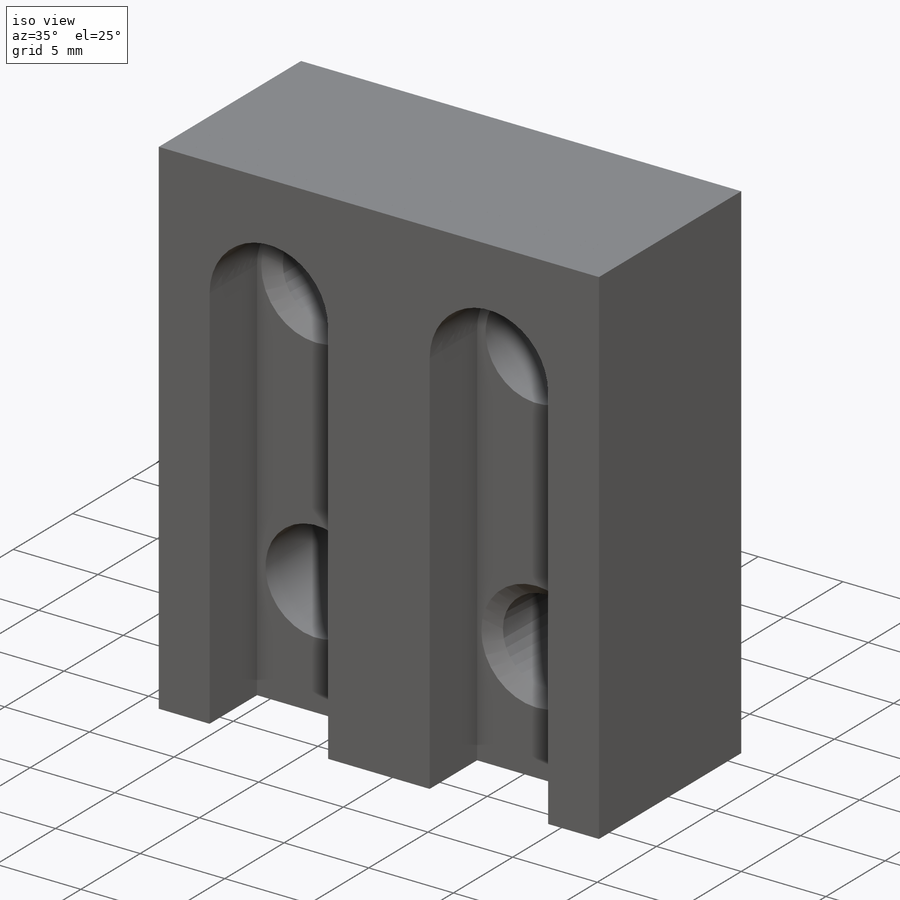
[diagram: iso view]
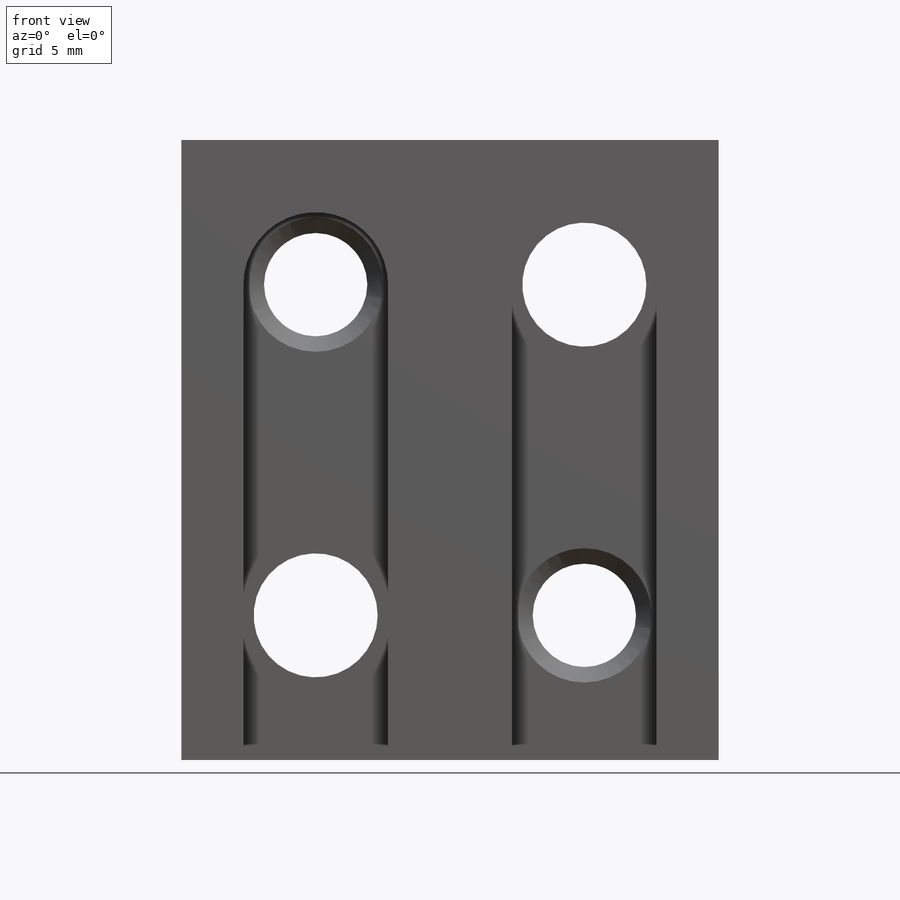
[diagram: front view]
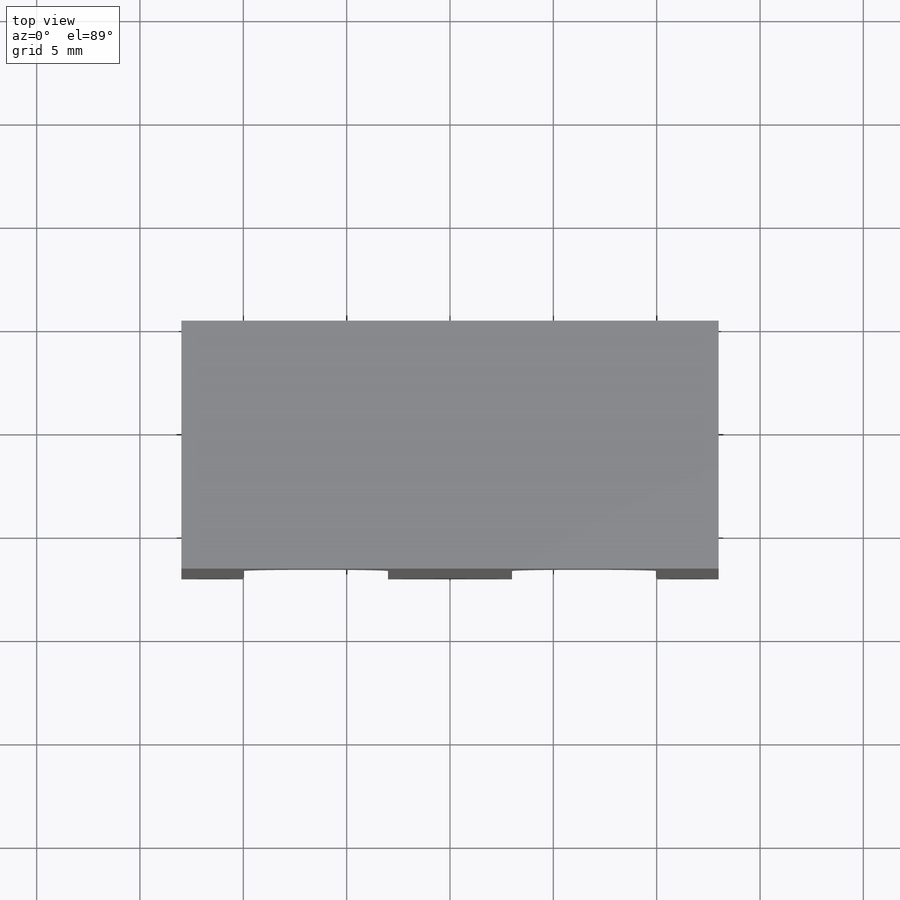
[diagram: top view]
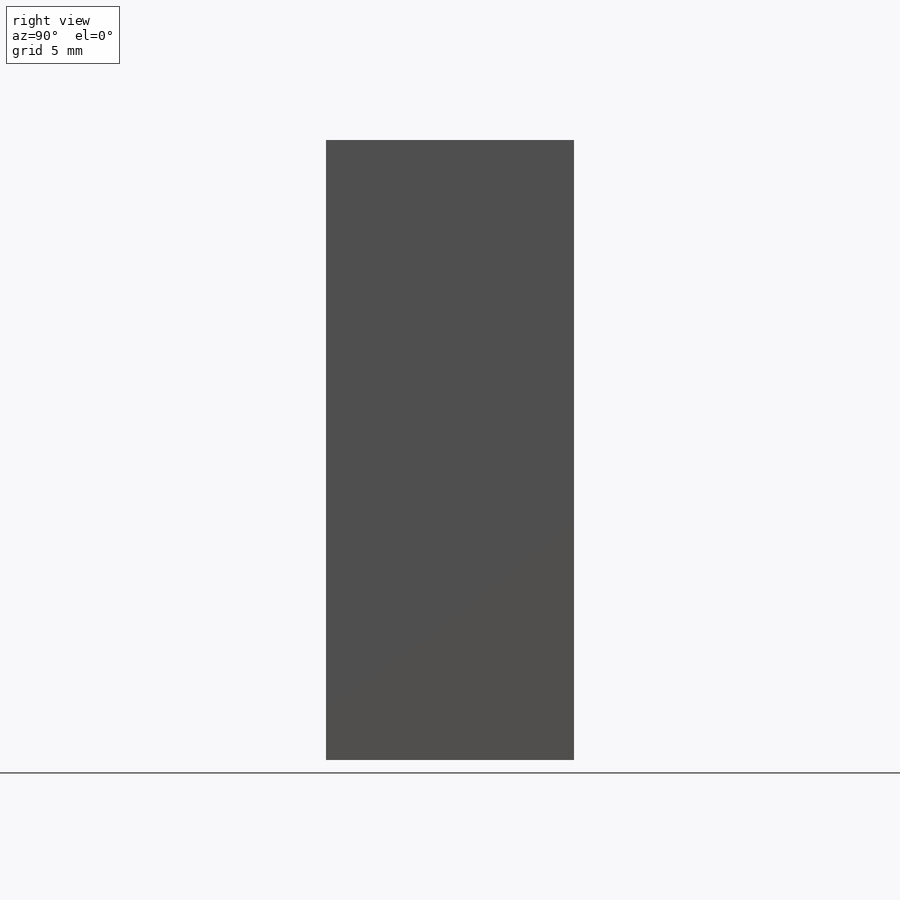
[diagram: right view]
SOLIDWORKS PART (.sldprt)
format: sldprt  version: not decoded by parser v0  size: 292,864 bytes
history: native  units: mm
features: sketch x7, hole x7, plane x3, thread x2, material x1, extrude x1, cut_extrude x1 + 4 further entries (+8 scaffold rows collapsed)
feature tree (34):
  scaffold x8  (default folders/planes/origin — collapsed)
  material  "Ст 3 ГОСТ 380-2005"
  plane  "Спереди"
  plane  "Сверху"
  plane  "Слева"
  "Начало координат"
  "PTricksFreeParameters"
  "PTricksEqu"
  "PTricksFreeParameters"
  sketch  "Эскиз1"  dims[D1=26.0mm D2=30.0mm]
  extrude  "База"  Depth=8mm
  sketch  "Эскиз2"  dims[c1.D1=6.0mm c1.D2=7.0mm c1.D7=7.0mm c1.D8=7.0mm c1.D3=7.0mm c1.D4=6.5mm c1.D5=6.5mm c1.D6=7.0mm c2.D7=9.0mm c2.D8=6.0mm]
  cut_extrude  "Штифты"  [1 undecoded]
  hole  "Отверстие обработанное метчиком M6x1.01"  [1 undecoded]
  sketch  "Трехмерный эскиз1"
  sketch  "Эскиз3"  dims[hole-wizard template sketch: 55 standard entries collapsed; hole parameters kept: c17.Глубина проходного сверла=8.0mm c17.Диаметр передней зенковки=6.5mm c17.D4=~3.666174mm c17.Угол передней зенковки=90.0deg]
  thread  "Отверстие резьбы1"  Diameter=6mm  [1 undecoded]
  thread  "Отверстие резьбы2"  Diameter=6mm  [1 undecoded]
  sketch  "Эскиз4"  dims[D2=6.0mm D3=3.0mm D4=3.0mm D1=0.0mm]
  sketch  "Вытянуть3"  dims[D1=4.0mm]
  sketch  "Эскиз5"  dims[D1=1.0mm D2=1.0mm D3=0.5mm D4=0.5mm D5=0.5mm D6=0.5mm]
  hole  "0,5мм[1]"  [1 undecoded]
  hole  "0,5мм[2]"  [1 undecoded]
  hole  "0,5мм[3]"  [1 undecoded]
  hole  "0,5мм[4]"  [1 undecoded]
  hole  "1мм[5]"  [1 undecoded]
  hole  "1мм[6]"  [1 undecoded]
decode coverage: 9 of 18 modeling features carry decoded parameters; 4 rows unclassified (native names shown)
note: ~ marks probable driven/reference dimensions
note: 10 parameter values undecoded
summary: no parameter record found for 8 features
note: suppression state not decoded; provenance and decode notes live in map.json
